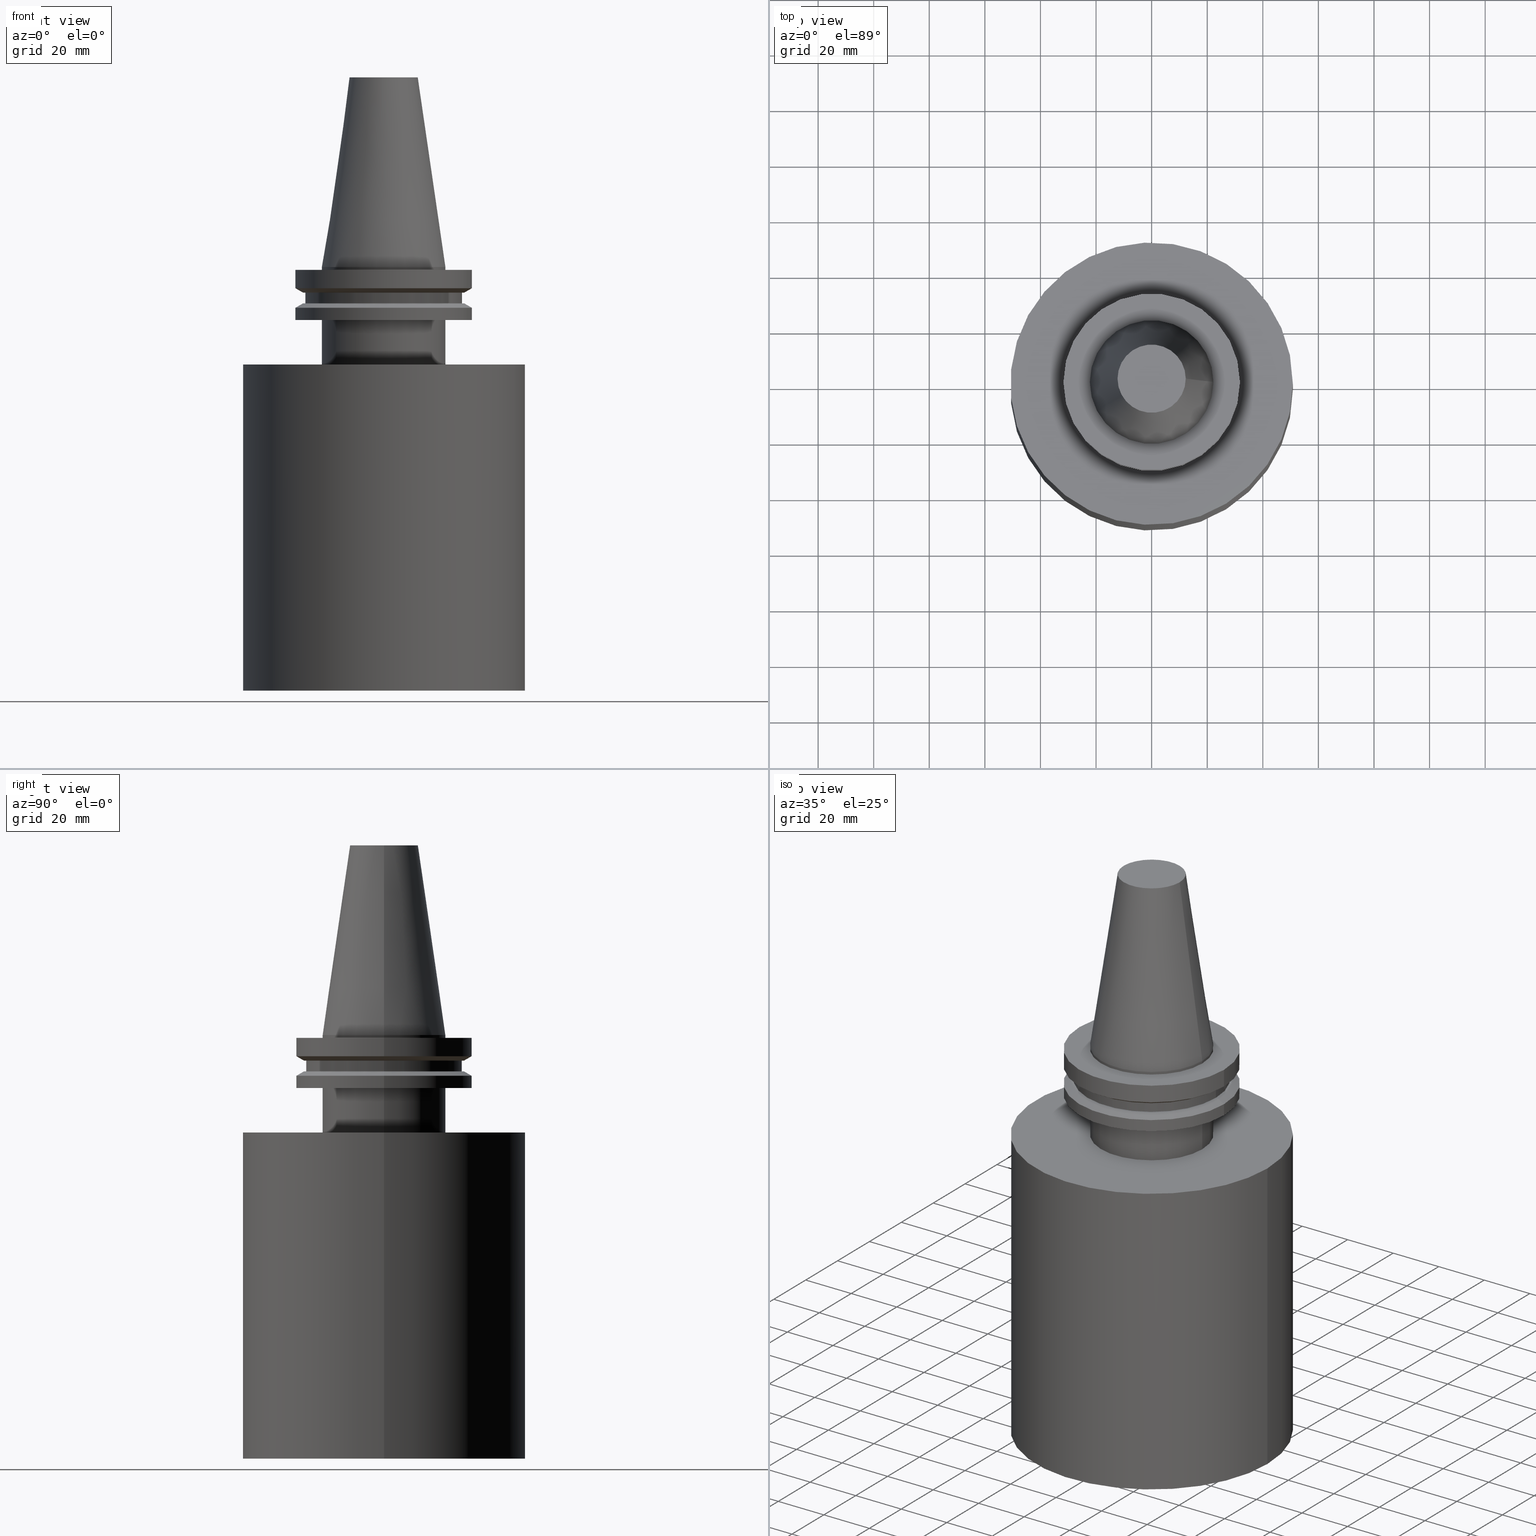
[diagram: canonical four-view strip — front | top / right | iso, engineering-drawing reading convention]
A machine part, canonical four-view strip (front | top / right | iso — engineering-drawing reading convention). The complete STEP part file that produces these views, byte-faithful:
ISO-10303-21;
HEADER;
FILE_DESCRIPTION (( 'STEP AP203' ),
    '1' );
FILE_NAME ('BVC40_BB4.000_6.stp',
    '2022-03-09T17:22:32',
    ( '' ),
    ( '' ),
    'SwSTEP 2.0',
    'SolidWorks 2021',
    '' );
FILE_SCHEMA (( 'CONFIG_CONTROL_DESIGN' ));
ENDSEC;

DATA;
#1 = ORIENTED_EDGE ( 'NONE', *, *, #34, .F. ) ;
#2 =( NAMED_UNIT ( * ) PLANE_ANGLE_UNIT ( ) SI_UNIT ( $, .RADIAN. ) );
#3 = ORIENTED_EDGE ( 'NONE', *, *, #378, .T. ) ;
#4 = DIRECTION ( 'NONE',  ( 0.000000000000000000, 0.000000000000000000, 1.000000000000000000 ) ) ;
#5 = EDGE_LOOP ( 'NONE', ( #224 ) ) ;
#6 = CLOSED_SHELL ( 'NONE', ( #114, #69, #104, #202, #305, #394, #146, #367, #25, #196, #178, #355, #343, #213, #183, #52 ) ) ;
#7 = LOCAL_TIME ( 11, 22, 32.00000000000000000, #395 ) ;
#8 = VERTEX_POINT ( 'NONE', #105 ) ;
#9 = EDGE_LOOP ( 'NONE', ( #88 ) ) ;
#10 = FACE_OUTER_BOUND ( 'NONE', #93, .T. ) ;
#11 = DIRECTION ( 'NONE',  ( 1.000000000000000000, 0.000000000000000000, 0.000000000000000000 ) ) ;
#12 = CC_DESIGN_APPROVAL ( #64, ( #268 ) ) ;
#13 = DIRECTION ( 'NONE',  ( -0.000000000000000000, -0.000000000000000000, 1.000000000000000000 ) ) ;
#14 = AXIS2_PLACEMENT_3D ( 'NONE', #117, #391, #91 ) ;
#15 = APPROVAL_STATUS ( 'not_yet_approved' ) ;
#16 = EDGE_CURVE ( 'NONE', #142, #142, #182, .T. ) ;
#17 = PLANE ( 'NONE',  #313 ) ;
#18 = CYLINDRICAL_SURFACE ( 'NONE', #161, 31.75000000000000000 ) ;
#19 = FACE_OUTER_BOUND ( 'NONE', #30, .T. ) ;
#20 = DIRECTION ( 'NONE',  ( 1.000000000000000000, 0.000000000000000000, 0.000000000000000000 ) ) ;
#21 = PRODUCT_DEFINITION_SHAPE ( 'NONE', 'NONE',  #56 ) ;
#22 = DIRECTION ( 'NONE',  ( -1.000000000000000000, 0.000000000000000000, -0.000000000000000000 ) ) ;
#23 = CARTESIAN_POINT ( 'NONE',  ( 0.000000000000000000, 0.000000000000000000, 68.25000000000000000 ) ) ;
#24 = AXIS2_PLACEMENT_3D ( 'NONE', #386, #364, #333 ) ;
#25 = ADVANCED_FACE ( 'NONE', ( #347, #220 ), #315, .F. ) ;
#26 = DIRECTION ( 'NONE',  ( 1.000000000000000000, 0.000000000000000000, 0.000000000000000000 ) ) ;
#27 = ORIENTED_EDGE ( 'NONE', *, *, #16, .T. ) ;
#28 = VERTEX_POINT ( 'NONE', #346 ) ;
#29 =( LENGTH_UNIT ( ) NAMED_UNIT ( * ) SI_UNIT ( .MILLI., .METRE. ) );
#30 = EDGE_LOOP ( 'NONE', ( #159 ) ) ;
#31 = AXIS2_PLACEMENT_3D ( 'NONE', #165, #295, #267 ) ;
#32 = PERSON_AND_ORGANIZATION_ROLE ( 'creator' ) ;
#33 = EDGE_LOOP ( 'NONE', ( #244 ) ) ;
#34 = EDGE_CURVE ( 'NONE', #207, #207, #129, .T. ) ;
#35 = CARTESIAN_POINT ( 'NONE',  ( 22.22500000000000142, 0.000000000000000000, -19.04999999999999716 ) ) ;
#36 = DIRECTION ( 'NONE',  ( 1.000000000000000000, 0.000000000000000000, 0.000000000000000000 ) ) ;
#37 = APPLICATION_PROTOCOL_DEFINITION ( 'international standard', 'config_control_design', 1994, #48 ) ;
#38 = CYLINDRICAL_SURFACE ( 'NONE', #169, 50.79999999999999005 ) ;
#39 = EDGE_CURVE ( 'NONE', #332, #332, #291, .T. ) ;
#40 = AXIS2_PLACEMENT_3D ( 'NONE', #345, #311, #68 ) ;
#41 = DIRECTION ( 'NONE',  ( -0.000000000000000000, -0.000000000000000000, 1.000000000000000000 ) ) ;
#42 = DIRECTION ( 'NONE',  ( -0.000000000000000000, -0.000000000000000000, 1.000000000000000000 ) ) ;
#43 = DIRECTION ( 'NONE',  ( -1.000000000000000000, 0.000000000000000000, -0.000000000000000000 ) ) ;
#44 = COORDINATED_UNIVERSAL_TIME_OFFSET ( 6, 0, .BEHIND. ) ;
#45 = DIRECTION ( 'NONE',  ( 1.000000000000000000, 0.000000000000000000, 0.000000000000000000 ) ) ;
#46 = DATE_TIME_ROLE ( 'classification_date' ) ;
#47 = CARTESIAN_POINT ( 'NONE',  ( 0.000000000000000000, 0.000000000000000000, -19.04999999999999716 ) ) ;
#48 = APPLICATION_CONTEXT ( 'configuration controlled 3d designs of mechanical parts and assemblies' ) ;
#49 = DIRECTION ( 'NONE',  ( -1.000000000000000000, 0.000000000000000000, -0.000000000000000000 ) ) ;
#50 = VERTEX_POINT ( 'NONE', #176 ) ;
#51 = CC_DESIGN_APPROVAL ( #82, ( #155 ) ) ;
#52 = ADVANCED_FACE ( 'NONE', ( #193, #318 ), #38, .T. ) ;
#53 = CARTESIAN_POINT ( 'NONE',  ( 0.000000000000000000, 0.000000000000000000, -19.04999999999999716 ) ) ;
#54 = CARTESIAN_POINT ( 'NONE',  ( 28.97919780457008088, 0.000000000000000000, -13.05499999999999794 ) ) ;
#55 = EDGE_LOOP ( 'NONE', ( #289 ) ) ;
#56 = PRODUCT_DEFINITION ( 'UNKNOWN', '', #268, #137 ) ;
#57 = FACE_OUTER_BOUND ( 'NONE', #252, .T. ) ;
#58 = APPROVAL_PERSON_ORGANIZATION ( #290, #270, #123 ) ;
#59 = CARTESIAN_POINT ( 'NONE',  ( 0.000000000000000000, 0.000000000000000000, -9.204999999999991189 ) ) ;
#60 = ORIENTED_EDGE ( 'NONE', *, *, #388, .F. ) ;
#61 = DATE_AND_TIME ( #336, #85 ) ;
#62 = DIRECTION ( 'NONE',  ( 0.000000000000000000, -0.000000000000000000, 1.000000000000000000 ) ) ;
#63 = ORIENTED_EDGE ( 'NONE', *, *, #263, .T. ) ;
#64 = APPROVAL ( #340, 'UNSPECIFIED' ) ;
#65 = CIRCLE ( 'NONE', #297, 50.79999999999998295 ) ;
#66 = APPROVAL_ROLE ( '' ) ;
#67 = ORIENTED_EDGE ( 'NONE', *, *, #140, .F. ) ;
#68 = DIRECTION ( 'NONE',  ( 1.000000000000000000, 0.000000000000000000, 0.000000000000000000 ) ) ;
#69 = ADVANCED_FACE ( 'NONE', ( #112 ), #17, .F. ) ;
#70 = CALENDAR_DATE ( 2022, 9, 3 ) ;
#71 = ORIENTED_EDGE ( 'NONE', *, *, #263, .F. ) ;
#72 = COORDINATED_UNIVERSAL_TIME_OFFSET ( 6, 0, .BEHIND. ) ;
#73 = DIRECTION ( 'NONE',  ( 1.000000000000000000, 0.000000000000000000, 0.000000000000000000 ) ) ;
#74 = FACE_OUTER_BOUND ( 'NONE', #369, .T. ) ;
#75 = FACE_BOUND ( 'NONE', #281, .T. ) ;
#76 = CONICAL_SURFACE ( 'NONE', #190, 28.97919780457007732, 1.047197551196598297 ) ;
#77 = DATE_AND_TIME ( #171, #237 ) ;
#78 = LOCAL_TIME ( 11, 22, 32.00000000000000000, #287 ) ;
#79 = FACE_OUTER_BOUND ( 'NONE', #121, .T. ) ;
#80 = AXIS2_PLACEMENT_3D ( 'NONE', #145, #210, #87 ) ;
#81 = FACE_BOUND ( 'NONE', #247, .T. ) ;
#82 = APPROVAL ( #15, 'UNSPECIFIED' ) ;
#83 = FACE_OUTER_BOUND ( 'NONE', #212, .T. ) ;
#84 = DIRECTION ( 'NONE',  ( 1.000000000000000000, 0.000000000000000000, 0.000000000000000000 ) ) ;
#85 = LOCAL_TIME ( 11, 22, 32.00000000000000000, #217 ) ;
#86 = CIRCLE ( 'NONE', #242, 50.79999999999999716 ) ;
#87 = DIRECTION ( 'NONE',  ( 1.000000000000000000, 0.000000000000000000, 0.000000000000000000 ) ) ;
#88 = ORIENTED_EDGE ( 'NONE', *, *, #39, .T. ) ;
#89 = DIRECTION ( 'NONE',  ( -0.000000000000000000, -0.000000000000000000, 1.000000000000000000 ) ) ;
#90 = EDGE_LOOP ( 'NONE', ( #372 ) ) ;
#91 = DIRECTION ( 'NONE',  ( 1.000000000000000000, 0.000000000000000000, 0.000000000000000000 ) ) ;
#92 = ORGANIZATION ( 'UNSPECIFIED', 'UNSPECIFIED', '' ) ;
#93 = EDGE_LOOP ( 'NONE', ( #128 ) ) ;
#94 = CIRCLE ( 'NONE', #258, 22.22499999999999787 ) ;
#95 = DATE_TIME_ROLE ( 'creation_date' ) ;
#96 = EDGE_LOOP ( 'NONE', ( #370 ) ) ;
#97 = CC_DESIGN_PERSON_AND_ORGANIZATION_ASSIGNMENT ( #154, #152, ( #327 ) ) ;
#98 = ORIENTED_EDGE ( 'NONE', *, *, #326, .T. ) ;
#99 = CARTESIAN_POINT ( 'NONE',  ( 50.79999999999999716, 0.000000000000000000, -152.4000000000000057 ) ) ;
#100 = CARTESIAN_POINT ( 'NONE',  ( 0.000000000000000000, 28.97919780457007732, -9.204999999999996518 ) ) ;
#101 = CIRCLE ( 'NONE', #354, 28.17999999999999972 ) ;
#102 = VERTEX_POINT ( 'NONE', #261 ) ;
#103 = DIRECTION ( 'NONE',  ( 1.000000000000000000, 0.000000000000000000, 0.000000000000000000 ) ) ;
#104 = ADVANCED_FACE ( 'NONE', ( #239, #174 ), #235, .T. ) ;
#105 = CARTESIAN_POINT ( 'NONE',  ( 31.75000000000000000, 0.000000000000000000, -1.000000000000000888 ) ) ;
#106 = EDGE_LOOP ( 'NONE', ( #215 ) ) ;
#107 = CARTESIAN_POINT ( 'NONE',  ( 0.000000000000000000, 28.17999999999999972, -13.05499999999999794 ) ) ;
#108 = FACE_OUTER_BOUND ( 'NONE', #90, .T. ) ;
#109 = DIRECTION ( 'NONE',  ( -0.000000000000000000, -0.000000000000000000, 1.000000000000000000 ) ) ;
#110 = DIRECTION ( 'NONE',  ( -0.000000000000000000, -0.000000000000000000, 1.000000000000000000 ) ) ;
#111 = AXIS2_PLACEMENT_3D ( 'NONE', #107, #272, #49 ) ;
#112 = FACE_OUTER_BOUND ( 'NONE', #262, .T. ) ;
#113 = CIRCLE ( 'NONE', #216, 31.75000000000000000 ) ;
#114 = ADVANCED_FACE ( 'NONE', ( #81, #10 ), #201, .T. ) ;
#115 = FACE_OUTER_BOUND ( 'NONE', #9, .T. ) ;
#116 = DIRECTION ( 'NONE',  ( -0.000000000000000000, -0.000000000000000000, 1.000000000000000000 ) ) ;
#117 = CARTESIAN_POINT ( 'NONE',  ( 0.000000000000000000, 0.000000000000000000, 0.000000000000000000 ) ) ;
#118 = FACE_OUTER_BOUND ( 'NONE', #163, .T. ) ;
#119 = DIRECTION ( 'NONE',  ( -0.000000000000000000, -0.000000000000000000, 1.000000000000000000 ) ) ;
#120 = CALENDAR_DATE ( 2022, 9, 3 ) ;
#121 = EDGE_LOOP ( 'NONE', ( #27 ) ) ;
#122 = CC_DESIGN_PERSON_AND_ORGANIZATION_ASSIGNMENT ( #133, #348, ( #268 ) ) ;
#123 = APPROVAL_ROLE ( '' ) ;
#124 = ORIENTED_EDGE ( 'NONE', *, *, #331, .T. ) ;
#125 = ORIENTED_EDGE ( 'NONE', *, *, #39, .F. ) ;
#126 = APPLICATION_PROTOCOL_DEFINITION ( 'international standard', 'config_control_design', 1994, #245 ) ;
#127 = EDGE_CURVE ( 'NONE', #50, #50, #238, .T. ) ;
#128 = ORIENTED_EDGE ( 'NONE', *, *, #302, .T. ) ;
#129 = CIRCLE ( 'NONE', #385, 28.17999999999999972 ) ;
#130 = CARTESIAN_POINT ( 'NONE',  ( 22.22499999999999787, 0.000000000000000000, -35.04999999999999716 ) ) ;
#131 = EDGE_LOOP ( 'NONE', ( #71 ) ) ;
#132 = CARTESIAN_POINT ( 'NONE',  ( 0.000000000000000000, 0.000000000000000000, 0.000000000000000000 ) ) ;
#133 = PERSON_AND_ORGANIZATION ( #265, #92 ) ;
#134 = DIRECTION ( 'NONE',  ( 0.000000000000000000, -0.000000000000000000, 1.000000000000000000 ) ) ;
#135 = DIRECTION ( 'NONE',  ( 0.000000000000000000, 0.000000000000000000, -1.000000000000000000 ) ) ;
#136 = CARTESIAN_POINT ( 'NONE',  ( 0.000000000000000000, 12.27178102086201150, 68.25000000000000000 ) ) ;
#137 = DESIGN_CONTEXT ( 'detailed design', #245, 'design' ) ;
#138 = APPROVAL_ROLE ( '' ) ;
#139 = CARTESIAN_POINT ( 'NONE',  ( 0.000000000000000000, 0.000000000000000000, -152.4000000000000057 ) ) ;
#140 = EDGE_CURVE ( 'NONE', #303, #303, #293, .T. ) ;
#141 = CONICAL_SURFACE ( 'NONE', #250, 31.75000000000000000, 1.047197551196597853 ) ;
#142 = VERTEX_POINT ( 'NONE', #359 ) ;
#143 = AXIS2_PLACEMENT_3D ( 'NONE', #374, #41, #337 ) ;
#144 = UNCERTAINTY_MEASURE_WITH_UNIT (LENGTH_MEASURE( 1.000000000000000082E-05 ), #29, 'distance_accuracy_value', 'NONE');
#145 = CARTESIAN_POINT ( 'NONE',  ( 0.000000000000000000, 0.000000000000000000, -1.000000000000000888 ) ) ;
#146 = ADVANCED_FACE ( 'NONE', ( #198, #377 ), #299, .F. ) ;
#147 = CARTESIAN_POINT ( 'NONE',  ( 22.22500000000000142, 0.000000000000000000, -1.000000000000000888 ) ) ;
#148 = FACE_BOUND ( 'NONE', #157, .T. ) ;
#149 = EDGE_LOOP ( 'NONE', ( #3 ) ) ;
#150 = CIRCLE ( 'NONE', #80, 31.75000000000000000 ) ;
#151 = CARTESIAN_POINT ( 'NONE',  ( 0.000000000000000000, 0.000000000000000000, -152.4000000000000057 ) ) ;
#152 = PERSON_AND_ORGANIZATION_ROLE ( 'design_owner' ) ;
#153 = CC_DESIGN_DATE_AND_TIME_ASSIGNMENT ( #368, #95, ( #56 ) ) ;
#154 = PERSON_AND_ORGANIZATION ( #265, #92 ) ;
#155 = SECURITY_CLASSIFICATION ( '', '', #266 ) ;
#156 = CARTESIAN_POINT ( 'NONE',  ( 0.000000000000000000, 0.000000000000000000, -13.05499999999999794 ) ) ;
#157 = EDGE_LOOP ( 'NONE', ( #125 ) ) ;
#158 = PRODUCT_RELATED_PRODUCT_CATEGORY ( 'detail', '', ( #327 ) ) ;
#159 = ORIENTED_EDGE ( 'NONE', *, *, #34, .T. ) ;
#160 = CARTESIAN_POINT ( 'NONE',  ( 0.000000000000000000, 0.000000000000000000, 0.000000000000000000 ) ) ;
#161 = AXIS2_PLACEMENT_3D ( 'NONE', #349, #109, #73 ) ;
#162 = AXIS2_PLACEMENT_3D ( 'NONE', #230, #322, #43 ) ;
#163 = EDGE_LOOP ( 'NONE', ( #363 ) ) ;
#164 = APPROVAL_DATE_TIME ( #203, #82 ) ;
#165 = CARTESIAN_POINT ( 'NONE',  ( 0.000000000000000000, 31.74999999999999289, -19.04999999999999716 ) ) ;
#166 = PERSON_AND_ORGANIZATION ( #265, #92 ) ;
#167 = DIRECTION ( 'NONE',  ( -1.000000000000000000, 0.000000000000000000, -0.000000000000000000 ) ) ;
#168 = CC_DESIGN_APPROVAL ( #270, ( #56 ) ) ;
#169 = AXIS2_PLACEMENT_3D ( 'NONE', #160, #292, #321 ) ;
#170 = PLANE ( 'NONE',  #384 ) ;
#171 = CALENDAR_DATE ( 2022, 9, 3 ) ;
#172 = CC_DESIGN_DATE_AND_TIME_ASSIGNMENT ( #77, #46, ( #155 ) ) ;
#173 = FACE_BOUND ( 'NONE', #194, .T. ) ;
#174 = FACE_OUTER_BOUND ( 'NONE', #342, .T. ) ;
#175 = APPROVAL_PERSON_ORGANIZATION ( #231, #82, #138 ) ;
#176 = CARTESIAN_POINT ( 'NONE',  ( 28.97919780457007732, 0.000000000000000000, -9.205000000000005400 ) ) ;
#177 = VERTEX_POINT ( 'NONE', #304 ) ;
#178 = ADVANCED_FACE ( 'NONE', ( #228, #79 ), #18, .T. ) ;
#179 = CYLINDRICAL_SURFACE ( 'NONE', #24, 28.17999999999999972 ) ;
#180 = AXIS2_PLACEMENT_3D ( 'NONE', #23, #360, #211 ) ;
#181 = CARTESIAN_POINT ( 'NONE',  ( 0.000000000000000000, 0.000000000000000000, -14.65472339340266572 ) ) ;
#182 = CIRCLE ( 'NONE', #143, 31.75000000000000000 ) ;
#183 = ADVANCED_FACE ( 'NONE', ( #74 ), #170, .F. ) ;
#184 = VERTEX_POINT ( 'NONE', #99 ) ;
#185 = MANIFOLD_SOLID_BREP ( 'Revolve1', #6 ) ;
#186 = DATE_AND_TIME ( #120, #7 ) ;
#187 = DIRECTION ( 'NONE',  ( -0.000000000000000000, -0.000000000000000000, 1.000000000000000000 ) ) ;
#188 = CALENDAR_DATE ( 2022, 9, 3 ) ;
#189 = EDGE_LOOP ( 'NONE', ( #226 ) ) ;
#190 = AXIS2_PLACEMENT_3D ( 'NONE', #197, #42, #273 ) ;
#191 =( NAMED_UNIT ( * ) SI_UNIT ( $, .STERADIAN. ) SOLID_ANGLE_UNIT ( ) );
#192 = EDGE_LOOP ( 'NONE', ( #60 ) ) ;
#193 = FACE_OUTER_BOUND ( 'NONE', #96, .T. ) ;
#194 = EDGE_LOOP ( 'NONE', ( #218 ) ) ;
#195 = CIRCLE ( 'NONE', #319, 31.74999999999999289 ) ;
#196 = ADVANCED_FACE ( 'NONE', ( #108, #173 ), #76, .T. ) ;
#197 = CARTESIAN_POINT ( 'NONE',  ( 0.000000000000000000, 0.000000000000000000, -9.205000000000005400 ) ) ;
#198 = FACE_BOUND ( 'NONE', #222, .T. ) ;
#199 = PERSON_AND_ORGANIZATION_ROLE ( 'design_supplier' ) ;
#200 = FACE_OUTER_BOUND ( 'NONE', #192, .T. ) ;
#201 = CONICAL_SURFACE ( 'NONE', #208, 22.22500000000000142, 0.1448138465474119174 ) ;
#202 = ADVANCED_FACE ( 'NONE', ( #200, #75 ), #381, .F. ) ;
#203 = DATE_AND_TIME ( #70, #339 ) ;
#204 = AXIS2_PLACEMENT_3D ( 'NONE', #275, #389, #209 ) ;
#205 = DIRECTION ( 'NONE',  ( 1.000000000000000000, 0.000000000000000000, 0.000000000000000000 ) ) ;
#206 = DIRECTION ( 'NONE',  ( -0.000000000000000000, -0.000000000000000000, 1.000000000000000000 ) ) ;
#207 = VERTEX_POINT ( 'NONE', #329 ) ;
#208 = AXIS2_PLACEMENT_3D ( 'NONE', #132, #135, #232 ) ;
#209 = DIRECTION ( 'NONE',  ( 1.000000000000000000, 0.000000000000000000, 0.000000000000000000 ) ) ;
#210 = DIRECTION ( 'NONE',  ( -0.000000000000000000, -0.000000000000000000, 1.000000000000000000 ) ) ;
#211 = DIRECTION ( 'NONE',  ( 1.000000000000000000, 0.000000000000000000, 0.000000000000000000 ) ) ;
#212 = EDGE_LOOP ( 'NONE', ( #253 ) ) ;
#213 = ADVANCED_FACE ( 'NONE', ( #353, #379 ), #351, .F. ) ;
#214 = DIRECTION ( 'NONE',  ( 1.000000000000000000, 0.000000000000000000, 0.000000000000000000 ) ) ;
#215 = ORIENTED_EDGE ( 'NONE', *, *, #140, .T. ) ;
#216 = AXIS2_PLACEMENT_3D ( 'NONE', #296, #13, #205 ) ;
#217 = COORDINATED_UNIVERSAL_TIME_OFFSET ( 6, 0, .BEHIND. ) ;
#218 = ORIENTED_EDGE ( 'NONE', *, *, #127, .T. ) ;
#219 = PERSON_AND_ORGANIZATION ( #265, #92 ) ;
#220 = FACE_BOUND ( 'NONE', #33, .T. ) ;
#221 = MECHANICAL_CONTEXT ( 'NONE', #48, 'mechanical' ) ;
#222 = EDGE_LOOP ( 'NONE', ( #1 ) ) ;
#223 = AXIS2_PLACEMENT_3D ( 'NONE', #279, #240, #22 ) ;
#224 = ORIENTED_EDGE ( 'NONE', *, *, #378, .F. ) ;
#225 = CARTESIAN_POINT ( 'NONE',  ( 28.17999999999999972, 0.000000000000000000, -9.204999999999991189 ) ) ;
#226 = ORIENTED_EDGE ( 'NONE', *, *, #388, .T. ) ;
#227 = EDGE_CURVE ( 'NONE', #177, #177, #113, .T. ) ;
#228 = FACE_OUTER_BOUND ( 'NONE', #5, .T. ) ;
#229 = APPROVAL_DATE_TIME ( #61, #64 ) ;
#230 = CARTESIAN_POINT ( 'NONE',  ( 0.000000000000000000, 50.79999999999998295, -35.04999999999999716 ) ) ;
#231 = PERSON_AND_ORGANIZATION ( #265, #92 ) ;
#232 = DIRECTION ( 'NONE',  ( -1.000000000000000000, 0.000000000000000000, 0.000000000000000000 ) ) ;
#233 = CC_DESIGN_PERSON_AND_ORGANIZATION_ASSIGNMENT ( #166, #199, ( #268 ) ) ;
#234 = SHAPE_DEFINITION_REPRESENTATION ( #21, #358 ) ;
#235 = CYLINDRICAL_SURFACE ( 'NONE', #341, 22.22500000000000142 ) ;
#236 = AXIS2_PLACEMENT_3D ( 'NONE', #328, #206, #300 ) ;
#237 = LOCAL_TIME ( 11, 22, 32.00000000000000000, #72 ) ;
#238 = CIRCLE ( 'NONE', #236, 28.97919780457007732 ) ;
#239 = FACE_OUTER_BOUND ( 'NONE', #131, .T. ) ;
#240 = DIRECTION ( 'NONE',  ( 0.000000000000000000, 0.000000000000000000, -1.000000000000000000 ) ) ;
#241 = CYLINDRICAL_SURFACE ( 'NONE', #204, 22.22500000000000142 ) ;
#242 = AXIS2_PLACEMENT_3D ( 'NONE', #151, #243, #20 ) ;
#243 = DIRECTION ( 'NONE',  ( -0.000000000000000000, -0.000000000000000000, 1.000000000000000000 ) ) ;
#244 = ORIENTED_EDGE ( 'NONE', *, *, #316, .T. ) ;
#245 = APPLICATION_CONTEXT ( 'configuration controlled 3d designs of mechanical parts and assemblies' ) ;
#246 = CARTESIAN_POINT ( 'NONE',  ( 0.000000000000000000, 0.000000000000000000, 68.25000000000000000 ) ) ;
#247 = EDGE_LOOP ( 'NONE', ( #392 ) ) ;
#248 = CC_DESIGN_PERSON_AND_ORGANIZATION_ASSIGNMENT ( #323, #298, ( #155 ) ) ;
#249 = FACE_OUTER_BOUND ( 'NONE', #149, .T. ) ;
#250 = AXIS2_PLACEMENT_3D ( 'NONE', #181, #276, #309 ) ;
#251 = APPROVAL_DATE_TIME ( #186, #270 ) ;
#252 = EDGE_LOOP ( 'NONE', ( #338 ) ) ;
#253 = ORIENTED_EDGE ( 'NONE', *, *, #227, .F. ) ;
#254 = EDGE_CURVE ( 'NONE', #317, #317, #94, .T. ) ;
#255 = PERSON_AND_ORGANIZATION ( #265, #92 ) ;
#256 = EDGE_LOOP ( 'NONE', ( #98 ) ) ;
#257 = VERTEX_POINT ( 'NONE', #225 ) ;
#258 = AXIS2_PLACEMENT_3D ( 'NONE', #324, #325, #383 ) ;
#259 = EDGE_LOOP ( 'NONE', ( #124 ) ) ;
#260 = CIRCLE ( 'NONE', #14, 22.22500000000000142 ) ;
#261 = CARTESIAN_POINT ( 'NONE',  ( 50.79999999999998295, 0.000000000000000000, -35.04999999999999716 ) ) ;
#262 = EDGE_LOOP ( 'NONE', ( #334 ) ) ;
#263 = EDGE_CURVE ( 'NONE', #373, #373, #307, .T. ) ;
#264 = DIRECTION ( 'NONE',  ( 1.000000000000000000, 0.000000000000000000, 0.000000000000000000 ) ) ;
#265 = PERSON ( 'UNSPECIFIED', 'UNSPECIFIED', 'UNSPECIFIED', ('UNSPECIFIED'), ('UNSPECIFIED'), ('UNSPECIFIED') ) ;
#266 = SECURITY_CLASSIFICATION_LEVEL ( 'unclassified' ) ;
#267 = DIRECTION ( 'NONE',  ( 1.000000000000000000, 0.000000000000000000, 0.000000000000000000 ) ) ;
#268 = PRODUCT_DEFINITION_FORMATION_WITH_SPECIFIED_SOURCE ( 'ANY', '', #327, .NOT_KNOWN. ) ;
#269 = AXIS2_PLACEMENT_3D ( 'NONE', #47, #116, #26 ) ;
#270 = APPROVAL ( #284, 'UNSPECIFIED' ) ;
#271 = DIRECTION ( 'NONE',  ( 0.000000000000000000, 0.000000000000000000, -1.000000000000000000 ) ) ;
#272 = DIRECTION ( 'NONE',  ( 0.000000000000000000, 0.000000000000000000, -1.000000000000000000 ) ) ;
#273 = DIRECTION ( 'NONE',  ( 1.000000000000000000, 0.000000000000000000, 0.000000000000000000 ) ) ;
#274 = AXIS2_PLACEMENT_3D ( 'NONE', #282, #4, #371 ) ;
#275 = CARTESIAN_POINT ( 'NONE',  ( 0.000000000000000000, 0.000000000000000000, 68.25000000000000000 ) ) ;
#276 = DIRECTION ( 'NONE',  ( 0.000000000000000000, 0.000000000000000000, -1.000000000000000000 ) ) ;
#277 = DIRECTION ( 'NONE',  ( -0.000000000000000000, -0.000000000000000000, 1.000000000000000000 ) ) ;
#278 = CIRCLE ( 'NONE', #390, 12.27178102086201150 ) ;
#279 = CARTESIAN_POINT ( 'NONE',  ( 0.000000000000000000, 31.75000000000000000, -0.9999999999999993339 ) ) ;
#280 = DIRECTION ( 'NONE',  ( -0.000000000000000000, -0.000000000000000000, 1.000000000000000000 ) ) ;
#281 = EDGE_LOOP ( 'NONE', ( #63 ) ) ;
#282 = CARTESIAN_POINT ( 'NONE',  ( 0.000000000000000000, 0.000000000000000000, 0.000000000000000000 ) ) ;
#283 = ORIENTED_EDGE ( 'NONE', *, *, #326, .F. ) ;
#284 = APPROVAL_STATUS ( 'not_yet_approved' ) ;
#285 = APPROVAL_PERSON_ORGANIZATION ( #255, #64, #66 ) ;
#286 = EDGE_LOOP ( 'NONE', ( #288 ) ) ;
#287 = COORDINATED_UNIVERSAL_TIME_OFFSET ( 6, 0, .BEHIND. ) ;
#288 = ORIENTED_EDGE ( 'NONE', *, *, #254, .F. ) ;
#289 = ORIENTED_EDGE ( 'NONE', *, *, #302, .F. ) ;
#290 = PERSON_AND_ORGANIZATION ( #265, #92 ) ;
#291 = CIRCLE ( 'NONE', #40, 22.22500000000000142 ) ;
#292 = DIRECTION ( 'NONE',  ( -0.000000000000000000, -0.000000000000000000, 1.000000000000000000 ) ) ;
#293 = CIRCLE ( 'NONE', #361, 28.97919780457008088 ) ;
#294 = EDGE_LOOP ( 'NONE', ( #320 ) ) ;
#295 = DIRECTION ( 'NONE',  ( 0.000000000000000000, -0.000000000000000000, 1.000000000000000000 ) ) ;
#296 = CARTESIAN_POINT ( 'NONE',  ( 0.000000000000000000, 0.000000000000000000, -14.65472339340266572 ) ) ;
#297 = AXIS2_PLACEMENT_3D ( 'NONE', #365, #119, #84 ) ;
#298 = PERSON_AND_ORGANIZATION_ROLE ( 'classification_officer' ) ;
#299 = PLANE ( 'NONE',  #111 ) ;
#300 = DIRECTION ( 'NONE',  ( 1.000000000000000000, 0.000000000000000000, 0.000000000000000000 ) ) ;
#301 = DIRECTION ( 'NONE',  ( 1.000000000000000000, 0.000000000000000000, 0.000000000000000000 ) ) ;
#302 = EDGE_CURVE ( 'NONE', #312, #312, #260, .T. ) ;
#303 = VERTEX_POINT ( 'NONE', #54 ) ;
#304 = CARTESIAN_POINT ( 'NONE',  ( 31.75000000000000000, 0.000000000000000000, -14.65472339340266572 ) ) ;
#305 = ADVANCED_FACE ( 'NONE', ( #83, #393 ), #387, .T. ) ;
#306 = FACE_OUTER_BOUND ( 'NONE', #55, .T. ) ;
#307 = CIRCLE ( 'NONE', #269, 22.22500000000000142 ) ;
#308 = CC_DESIGN_SECURITY_CLASSIFICATION ( #155, ( #268 ) ) ;
#309 = DIRECTION ( 'NONE',  ( -1.000000000000000000, 0.000000000000000000, 0.000000000000000000 ) ) ;
#310 = CARTESIAN_POINT ( 'NONE',  ( 31.74999999999999289, 0.000000000000000000, -19.04999999999999716 ) ) ;
#311 = DIRECTION ( 'NONE',  ( -0.000000000000000000, -0.000000000000000000, 1.000000000000000000 ) ) ;
#312 = VERTEX_POINT ( 'NONE', #344 ) ;
#313 = AXIS2_PLACEMENT_3D ( 'NONE', #136, #271, #167 ) ;
#314 = ORIENTED_EDGE ( 'NONE', *, *, #254, .T. ) ;
#315 = PLANE ( 'NONE',  #356 ) ;
#316 = EDGE_CURVE ( 'NONE', #257, #257, #101, .T. ) ;
#317 = VERTEX_POINT ( 'NONE', #130 ) ;
#318 = FACE_OUTER_BOUND ( 'NONE', #256, .T. ) ;
#319 = AXIS2_PLACEMENT_3D ( 'NONE', #53, #89, #214 ) ;
#320 = ORIENTED_EDGE ( 'NONE', *, *, #127, .F. ) ;
#321 = DIRECTION ( 'NONE',  ( 1.000000000000000000, 0.000000000000000000, 0.000000000000000000 ) ) ;
#322 = DIRECTION ( 'NONE',  ( 0.000000000000000000, 0.000000000000000000, -1.000000000000000000 ) ) ;
#323 = PERSON_AND_ORGANIZATION ( #265, #92 ) ;
#324 = CARTESIAN_POINT ( 'NONE',  ( 0.000000000000000000, 0.000000000000000000, -35.04999999999999716 ) ) ;
#325 = DIRECTION ( 'NONE',  ( -0.000000000000000000, -0.000000000000000000, 1.000000000000000000 ) ) ;
#326 = EDGE_CURVE ( 'NONE', #184, #184, #86, .T. ) ;
#327 = PRODUCT ( 'BVC40_BB4.000_6', 'BVC40_BB4.000_6', '', ( #221 ) ) ;
#328 = CARTESIAN_POINT ( 'NONE',  ( 0.000000000000000000, 0.000000000000000000, -9.205000000000005400 ) ) ;
#329 = CARTESIAN_POINT ( 'NONE',  ( 28.17999999999999972, 0.000000000000000000, -13.05499999999999794 ) ) ;
#330 = PLANE ( 'NONE',  #223 ) ;
#331 = EDGE_CURVE ( 'NONE', #102, #102, #65, .T. ) ;
#332 = VERTEX_POINT ( 'NONE', #147 ) ;
#333 = DIRECTION ( 'NONE',  ( 1.000000000000000000, 0.000000000000000000, 0.000000000000000000 ) ) ;
#334 = ORIENTED_EDGE ( 'NONE', *, *, #350, .T. ) ;
#335 = FACE_BOUND ( 'NONE', #376, .T. ) ;
#336 = CALENDAR_DATE ( 2022, 9, 3 ) ;
#337 = DIRECTION ( 'NONE',  ( 1.000000000000000000, 0.000000000000000000, 0.000000000000000000 ) ) ;
#338 = ORIENTED_EDGE ( 'NONE', *, *, #227, .T. ) ;
#339 = LOCAL_TIME ( 11, 22, 32.00000000000000000, #44 ) ;
#340 = APPROVAL_STATUS ( 'not_yet_approved' ) ;
#341 = AXIS2_PLACEMENT_3D ( 'NONE', #357, #110, #45 ) ;
#342 = EDGE_LOOP ( 'NONE', ( #314 ) ) ;
#343 = ADVANCED_FACE ( 'NONE', ( #306, #115 ), #241, .T. ) ;
#344 = CARTESIAN_POINT ( 'NONE',  ( 22.22500000000000142, 0.000000000000000000, 0.000000000000000000 ) ) ;
#345 = CARTESIAN_POINT ( 'NONE',  ( 0.000000000000000000, 0.000000000000000000, -1.000000000000000888 ) ) ;
#346 = CARTESIAN_POINT ( 'NONE',  ( 12.27178102086201150, 0.000000000000000000, 68.25000000000000000 ) ) ;
#347 = FACE_OUTER_BOUND ( 'NONE', #294, .T. ) ;
#348 = PERSON_AND_ORGANIZATION_ROLE ( 'creator' ) ;
#349 = CARTESIAN_POINT ( 'NONE',  ( 0.000000000000000000, 0.000000000000000000, 68.25000000000000000 ) ) ;
#350 = EDGE_CURVE ( 'NONE', #28, #28, #278, .T. ) ;
#351 = PLANE ( 'NONE',  #162 ) ;
#352 = CARTESIAN_POINT ( 'NONE',  ( 0.000000000000000000, 0.000000000000000000, -13.05499999999999794 ) ) ;
#353 = FACE_BOUND ( 'NONE', #286, .T. ) ;
#354 = AXIS2_PLACEMENT_3D ( 'NONE', #59, #280, #301 ) ;
#355 = ADVANCED_FACE ( 'NONE', ( #148, #249 ), #330, .F. ) ;
#356 = AXIS2_PLACEMENT_3D ( 'NONE', #100, #62, #103 ) ;
#357 = CARTESIAN_POINT ( 'NONE',  ( 0.000000000000000000, 0.000000000000000000, 68.25000000000000000 ) ) ;
#358 = ADVANCED_BREP_SHAPE_REPRESENTATION ( 'BVC40_BB4.000_6', ( #185, #274 ), #366 ) ;
#359 = CARTESIAN_POINT ( 'NONE',  ( 31.75000000000000000, 0.000000000000000000, -7.605276606597335842 ) ) ;
#360 = DIRECTION ( 'NONE',  ( -0.000000000000000000, -0.000000000000000000, 1.000000000000000000 ) ) ;
#361 = AXIS2_PLACEMENT_3D ( 'NONE', #352, #380, #264 ) ;
#362 = DIRECTION ( 'NONE',  ( 1.000000000000000000, 0.000000000000000000, 0.000000000000000000 ) ) ;
#363 = ORIENTED_EDGE ( 'NONE', *, *, #316, .F. ) ;
#364 = DIRECTION ( 'NONE',  ( -0.000000000000000000, -0.000000000000000000, 1.000000000000000000 ) ) ;
#365 = CARTESIAN_POINT ( 'NONE',  ( 0.000000000000000000, 0.000000000000000000, -35.04999999999999716 ) ) ;
#366 =( GEOMETRIC_REPRESENTATION_CONTEXT ( 3 ) GLOBAL_UNCERTAINTY_ASSIGNED_CONTEXT ( ( #144 ) ) GLOBAL_UNIT_ASSIGNED_CONTEXT ( ( #29, #2, #191 ) ) REPRESENTATION_CONTEXT ( 'NONE', 'WORKASPACE' ) );
#367 = ADVANCED_FACE ( 'NONE', ( #118, #19 ), #179, .T. ) ;
#368 = DATE_AND_TIME ( #188, #78 ) ;
#369 = EDGE_LOOP ( 'NONE', ( #283 ) ) ;
#370 = ORIENTED_EDGE ( 'NONE', *, *, #331, .F. ) ;
#371 = DIRECTION ( 'NONE',  ( 1.000000000000000000, 0.000000000000000000, 0.000000000000000000 ) ) ;
#372 = ORIENTED_EDGE ( 'NONE', *, *, #16, .F. ) ;
#373 = VERTEX_POINT ( 'NONE', #35 ) ;
#374 = CARTESIAN_POINT ( 'NONE',  ( 0.000000000000000000, 0.000000000000000000, -7.605276606597335842 ) ) ;
#375 = VERTEX_POINT ( 'NONE', #310 ) ;
#376 = EDGE_LOOP ( 'NONE', ( #67 ) ) ;
#377 = FACE_OUTER_BOUND ( 'NONE', #106, .T. ) ;
#378 = EDGE_CURVE ( 'NONE', #8, #8, #150, .T. ) ;
#379 = FACE_OUTER_BOUND ( 'NONE', #259, .T. ) ;
#380 = DIRECTION ( 'NONE',  ( -0.000000000000000000, -0.000000000000000000, 1.000000000000000000 ) ) ;
#381 = PLANE ( 'NONE',  #31 ) ;
#382 = CC_DESIGN_PERSON_AND_ORGANIZATION_ASSIGNMENT ( #219, #32, ( #56 ) ) ;
#383 = DIRECTION ( 'NONE',  ( 1.000000000000000000, 0.000000000000000000, 0.000000000000000000 ) ) ;
#384 = AXIS2_PLACEMENT_3D ( 'NONE', #139, #134, #11 ) ;
#385 = AXIS2_PLACEMENT_3D ( 'NONE', #156, #187, #36 ) ;
#386 = CARTESIAN_POINT ( 'NONE',  ( 0.000000000000000000, 0.000000000000000000, 68.25000000000000000 ) ) ;
#387 = CYLINDRICAL_SURFACE ( 'NONE', #180, 31.75000000000000000 ) ;
#388 = EDGE_CURVE ( 'NONE', #375, #375, #195, .T. ) ;
#389 = DIRECTION ( 'NONE',  ( -0.000000000000000000, -0.000000000000000000, 1.000000000000000000 ) ) ;
#390 = AXIS2_PLACEMENT_3D ( 'NONE', #246, #277, #362 ) ;
#391 = DIRECTION ( 'NONE',  ( -0.000000000000000000, -0.000000000000000000, 1.000000000000000000 ) ) ;
#392 = ORIENTED_EDGE ( 'NONE', *, *, #350, .F. ) ;
#393 = FACE_OUTER_BOUND ( 'NONE', #189, .T. ) ;
#394 = ADVANCED_FACE ( 'NONE', ( #335, #57 ), #141, .T. ) ;
#395 = COORDINATED_UNIVERSAL_TIME_OFFSET ( 6, 0, .BEHIND. ) ;
ENDSEC;
END-ISO-10303-21;
